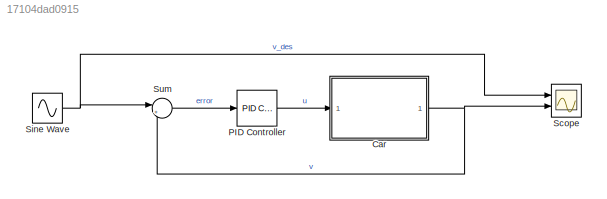
MODEL slx_17104dad0915
KIND model
CONFIG AbsTol = auto
CONFIG EnableMultiTasking = off
CONFIG FixedStep = auto
CONFIG MaxStep = auto
CONFIG MinStep = auto
CONFIG RelTol = 1e-3
CONFIG SampleTimeConstraint = Unconstrained
CONFIG SolverName = VariableStepAuto
CONFIG StartTime = 0.0
CONFIG StopTime = 120
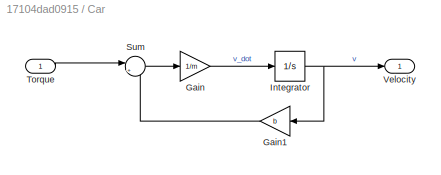
BLOCK [SubSystem] Car
  Ports = [1, 1]
  RequestExecContextInheritance = off
BLOCK [Gain] Car/Gain
  Gain = 1/m
BLOCK [Gain] Car/Gain1
  Gain = b
BLOCK [Integrator] Car/Integrator
  Ports = [1, 1]
BLOCK [Sum] Car/Sum
  Inputs = |+-
  Ports = [2, 1]
BLOCK [Inport] Car/Torque
BLOCK [Outport] Car/Velocity
BLOCK [Reference] PID Controller  REF=pid_lib/PID Controller
  Ports = [1, 1]
  SourceBlock = pid_lib/PID Controller
  SourceProductBaseCode = SL
  SourceType = PID 1dof
BLOCK [Scope] Scope
  Floating = off
  NumInputPorts = 2
  Ports = [2]
  ScopeSpecificationString = Simulink.scopes.TimeScopeBlockCfg('CurrentConfiguration', extmgr.ConfigurationSet(extmgr.Configuration('Core','General UI',true),extmgr.Configuration('Core','Source UI',true),extmgr.Configuration('Sources','WiredSimulink',true),extmgr.Configuration('Visuals','Time Domain',true,'SerializedDisplays',{struct('MinYLimReal','-1.24925','MaxYLimReal','1.24343','YLabelReal','','MinYLimMag','0.00000','MaxY...<+1372ch>
BLOCK [Sin] Sine Wave
  Frequency = 0.2
  Ports = [0, 1]
  SampleTime = 0
BLOCK [Sum] Sum
  Inputs = |+-
  Ports = [2, 1]
LINE Car/Gain1:1 -> Car/Sum:2
LINE Car/Gain:1 -> Car/Integrator:1
NET Car/Integrator:1 -> Car/Gain1:1, Car/Velocity:1
LINE Car/Sum:1 -> Car/Gain:1
LINE Car/Torque:1 -> Car/Sum:1
NET Car:1 -> Scope:2, Sum:2
LINE PID Controller:1 -> Car:1
NET Sine Wave:1 -> Scope:1, Sum:1
LINE Sum:1 -> PID Controller:1
note: NET lines group one-source signal fan-out (src -> all destinations, sorted); 1:1 wires keep LINE
